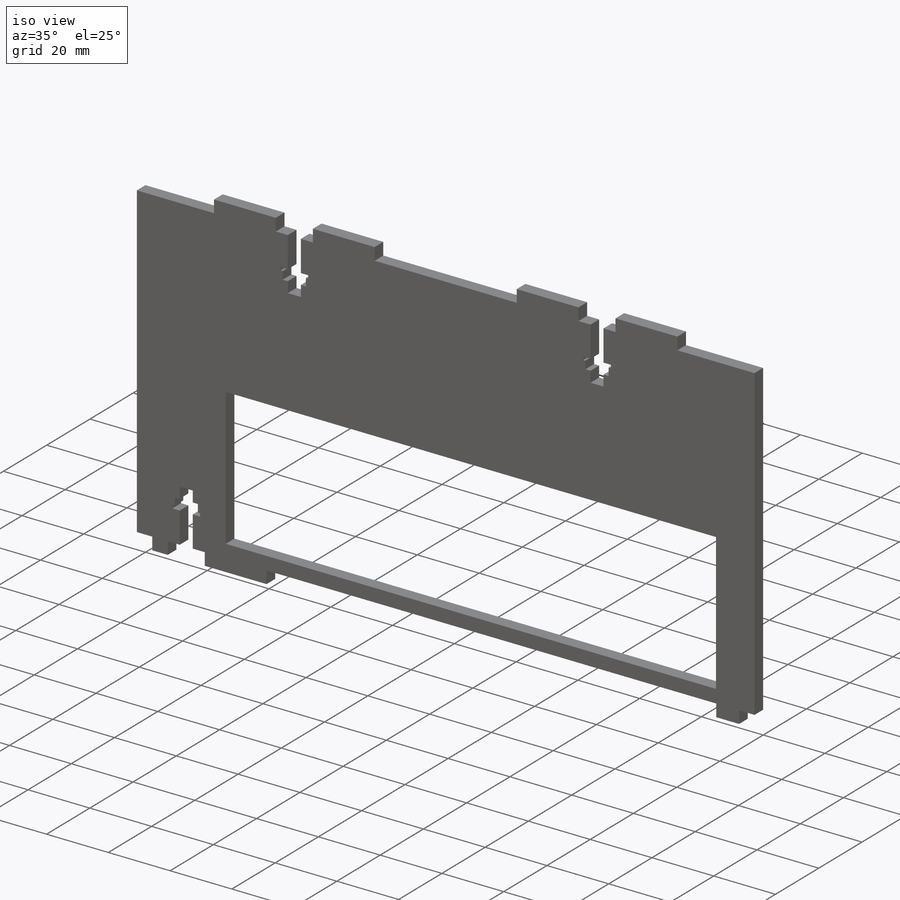
[diagram: iso view]
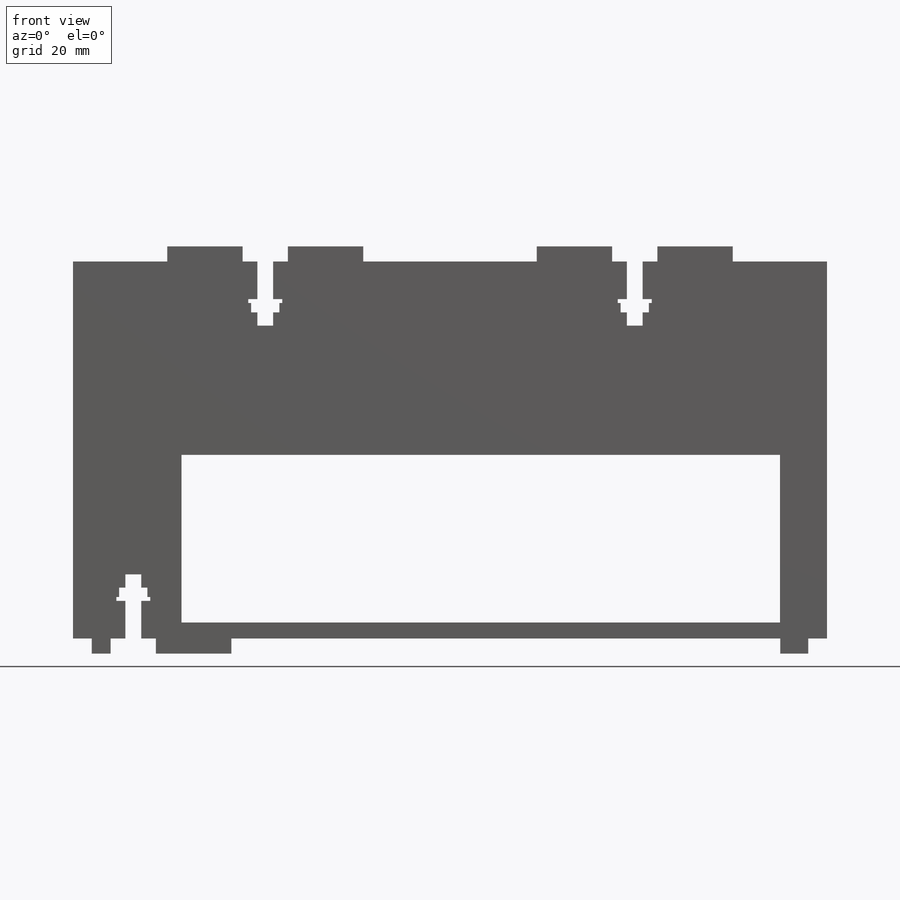
[diagram: front view]
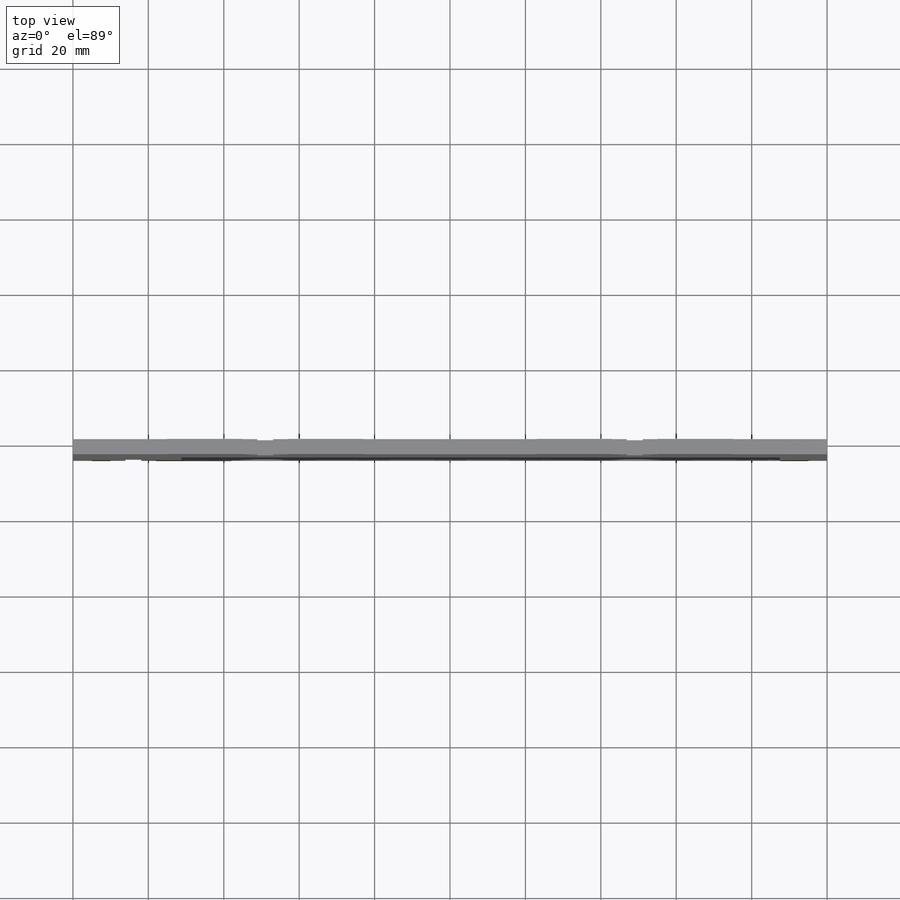
[diagram: top view]
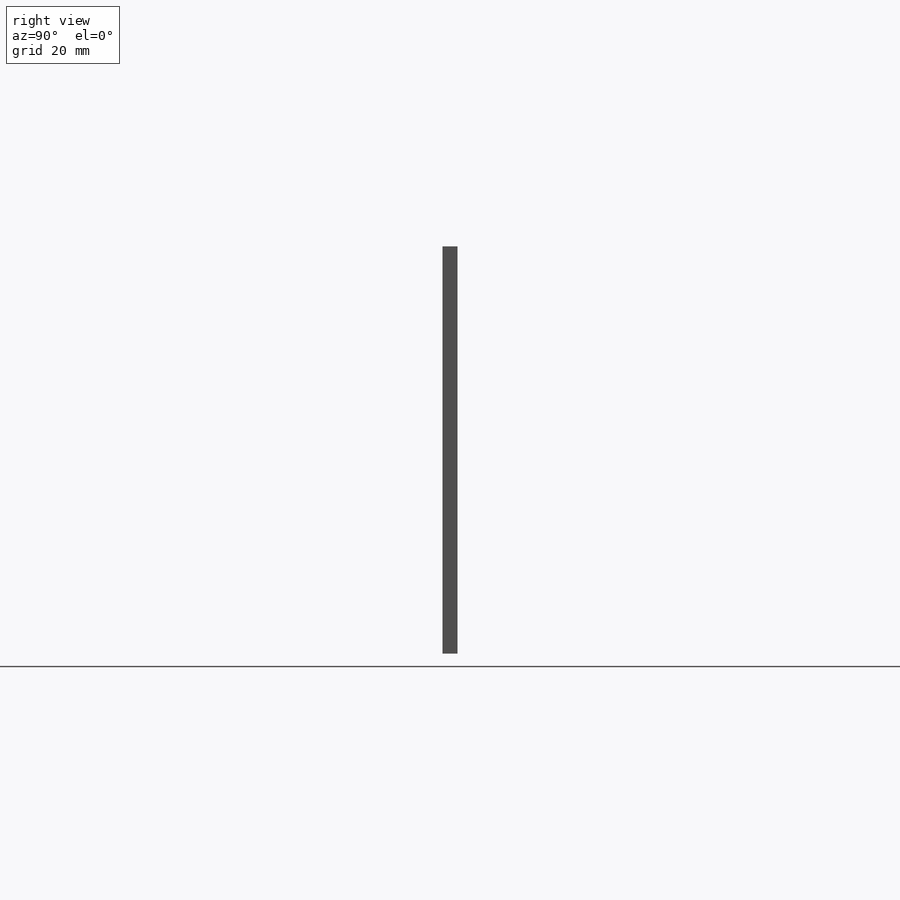
[diagram: right view]
SOLIDWORKS PART (.sldprt)
format: sldprt  version: not decoded by parser v0  size: 392,192 bytes
history: native  units: mm
features: sketch x4, cut_extrude x3, material x1, extrude x1 (+11 scaffold rows collapsed)
feature tree (20):
  scaffold x11  (default folders/planes/origin — collapsed)
  material  "Material <not specified>"
  sketch  "Sketch1"  dims[c1.D1=200.0mm c1.D2=100.0mm c1.D3=4.0mm c1.D4=12.0mm c1.D5=20.0mm c1.D6=20.0mm c1.D7=25.0mm c1.D8=12.0mm c1.D9=20.0mm c1.D10=20.0mm c1.D11=25.0mm c1.D12=4.0mm c1.D13=5.0mm c1.D14=15.0mm c1.D15=5.0mm c1.D16=7.4mm c2.D12=10.0mm c2.D13=12.0mm c2.D14=20.0mm c2.D17=4.0mm]
  extrude  "Boss-Extrude1"  Depth=4mm
  sketch  "Sketch2"  dims[D1=158.75mm D2=44.45mm D3=4.26mm D4=8.78mm D5=12.47mm]
  cut_extrude  "Cut-Extrude1"  Depth=6mm
  sketch  "Sketch3"  dims[c1.D1=4.2mm c1.D2=13.0mm c1.D3=7.0mm c1.D4=3.5mm c1.D5=4.2mm c1.D6=13.0mm c1.D7=7.0mm c1.D8=3.5mm c1.D9=7.0mm c2.D5=4.2mm c2.D6=17.0mm c2.D7=7.5mm c2.D8=2.5mm c2.D9=9.0mm c2.D10=1.0mm c2.D11=10.0mm c2.D2=4.2mm c2.D3=17.0mm c2.D4=7.5mm c2.D12=2.5mm c2.D13=9.0mm c2.D14=1.0mm c2.D15=10.0mm]
  cut_extrude  "Cut-Extrude2"  Depth=10mm
  sketch  "Sketch4"  dims[D1=5.0mm D2=5.0mm]
  cut_extrude  "Cut-Extrude3"  Depth=10mm
decode coverage: 8 of 8 modeling features carry decoded parameters
note: suppression state not decoded; provenance and decode notes live in map.json
